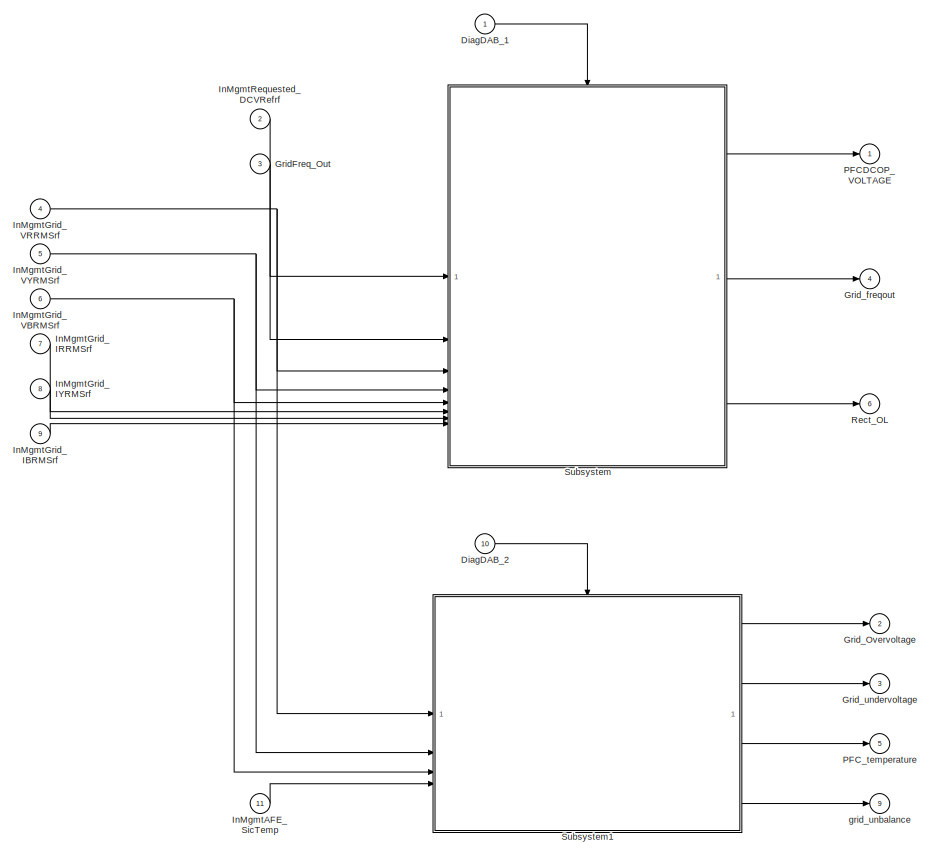
[diagram: root canvas - part 1/2, full width, top band]
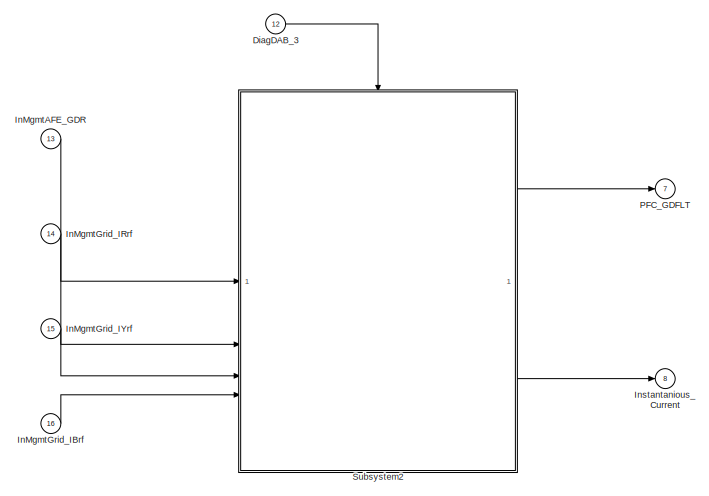
[diagram: root canvas - part 2/2, full width, bottom band]
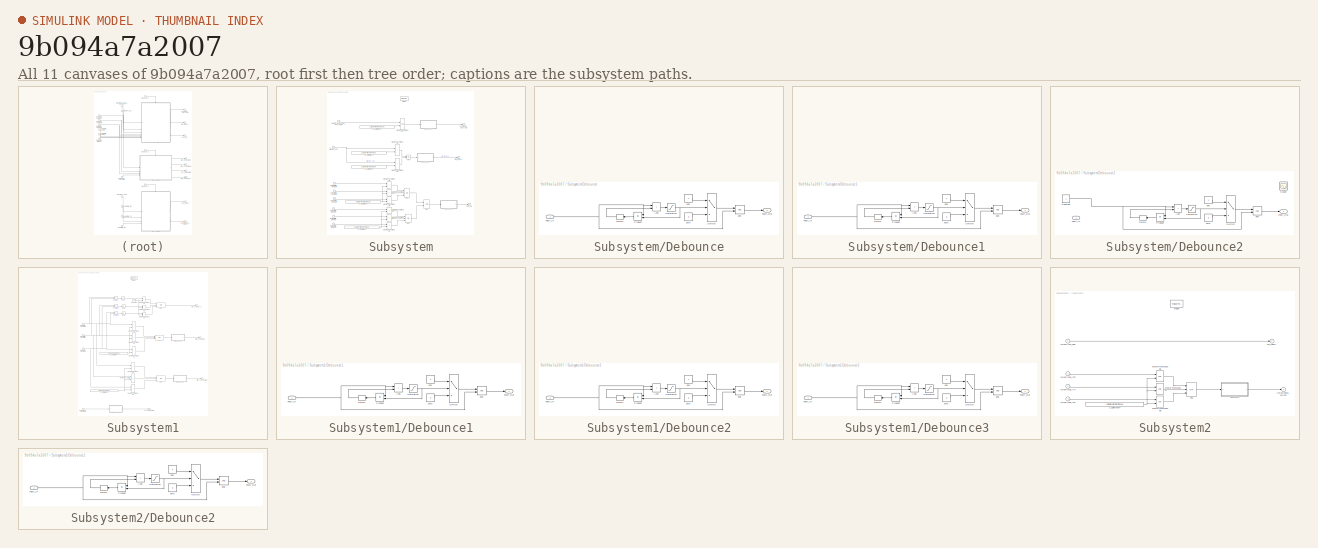
[diagram: thumbnail index - all 11 canvases of the model, root first then tree order]
MODEL slx_9b094a7a2007
KIND model
BLOCK [Inport] DiagDAB_1
  AttributesFormatString = %<SampleTime>
  Description = Inverter HVDC voltage
  OutMax = 1000
  OutMin = 0
  OutputFunctionCall = on
  PortDimensions = 1
  SampleTime = 0.001
  SamplingMode = Sample based
  SignalType = real
BLOCK [Inport] DiagDAB_2
  AttributesFormatString = %<SampleTime>
  Description = Inverter HVDC voltage
  OutMax = 1000
  OutMin = 0
  OutputFunctionCall = on
  Port = 10
  PortDimensions = 1
  SampleTime = 0.010
  SamplingMode = Sample based
  SignalType = real
BLOCK [Inport] DiagDAB_3
  AttributesFormatString = %<SampleTime>
  Description = Inverter HVDC voltage
  OutMax = 1000
  OutMin = 0
  OutputFunctionCall = on
  Port = 12
  PortDimensions = 1
  SampleTime = 0.025
  SamplingMode = Sample based
  SignalType = real
BLOCK [Inport] GridFreq_Out
  OutDataTypeStr = uint16
  Port = 3
BLOCK [Outport] Grid_Overvoltage
  OutDataTypeStr = boolean
  Port = 2
  VectorParamsAs1DForOutWhenUnconnected = off
BLOCK [Outport] Grid_freqout 
  OutDataTypeStr = boolean
  Port = 4
  VectorParamsAs1DForOutWhenUnconnected = off
BLOCK [Outport] Grid_undervoltage
  OutDataTypeStr = boolean
  Port = 3
  VectorParamsAs1DForOutWhenUnconnected = off
BLOCK [Inport] InMgmtAFE_GDR
  OutDataTypeStr = boolean
  Port = 13
BLOCK [Inport] InMgmtAFE_SicTemp
  OutDataTypeStr = boolean
  Port = 11
BLOCK [Inport] InMgmtGrid_IBRMSrf
  OutDataTypeStr = uint16
  Port = 9
BLOCK [Inport] InMgmtGrid_IBrf
  OutDataTypeStr = uint16
  Port = 16
BLOCK [Inport] InMgmtGrid_IRRMSrf
  OutDataTypeStr = uint16
  Port = 7
BLOCK [Inport] InMgmtGrid_IRrf
  OutDataTypeStr = uint16
  Port = 14
BLOCK [Inport] InMgmtGrid_IYRMSrf
  OutDataTypeStr = uint16
  Port = 8
BLOCK [Inport] InMgmtGrid_IYrf
  OutDataTypeStr = uint16
  Port = 15
BLOCK [Inport] InMgmtGrid_VBRMSrf
  OutDataTypeStr = uint16
  Port = 6
BLOCK [Inport] InMgmtGrid_VRRMSrf
  OutDataTypeStr = uint16
  Port = 4
BLOCK [Inport] InMgmtGrid_VYRMSrf
  OutDataTypeStr = uint16
  Port = 5
BLOCK [Inport] InMgmtRequested_DCVRefrf
  OutDataTypeStr = uint16
  Port = 2
BLOCK [Outport] Instantanious_Current
  OutDataTypeStr = boolean
  Port = 8
  VectorParamsAs1DForOutWhenUnconnected = off
BLOCK [Outport] PFCDCOP_VOLTAGE
  OutDataTypeStr = boolean
  VectorParamsAs1DForOutWhenUnconnected = off
BLOCK [Outport] PFC_GDFLT
  OutDataTypeStr = boolean
  Port = 7
  VectorParamsAs1DForOutWhenUnconnected = off
BLOCK [Outport] PFC_temperature
  OutDataTypeStr = boolean
  Port = 5
  VectorParamsAs1DForOutWhenUnconnected = off
BLOCK [Outport] Rect_OL
  OutDataTypeStr = boolean
  Port = 6
  VectorParamsAs1DForOutWhenUnconnected = off
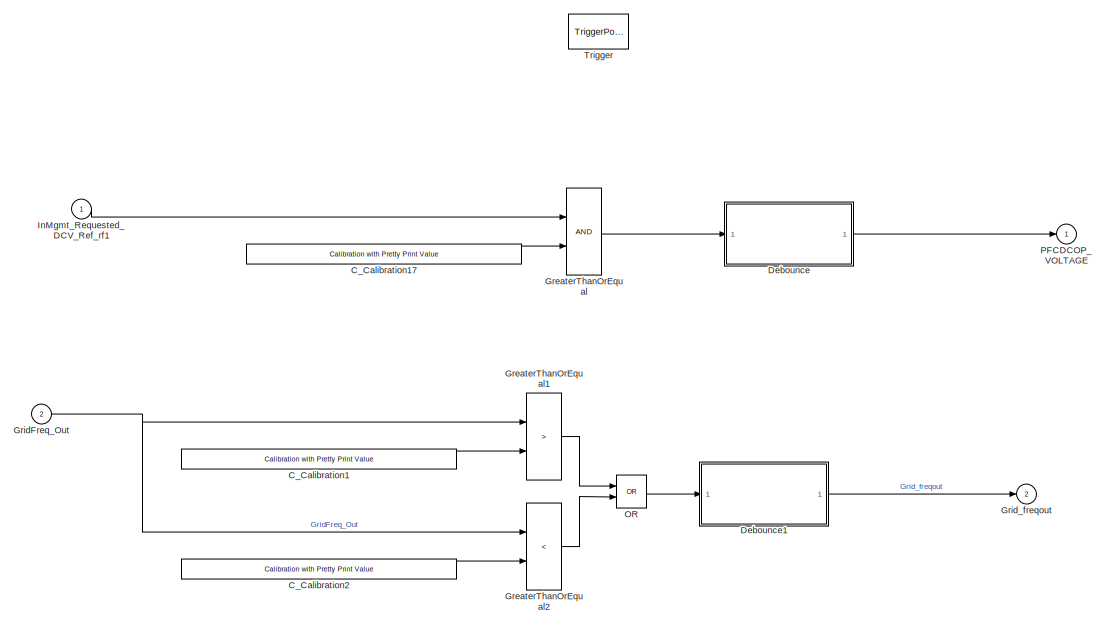
[diagram: Subsystem - part 1/2, full width, top band]
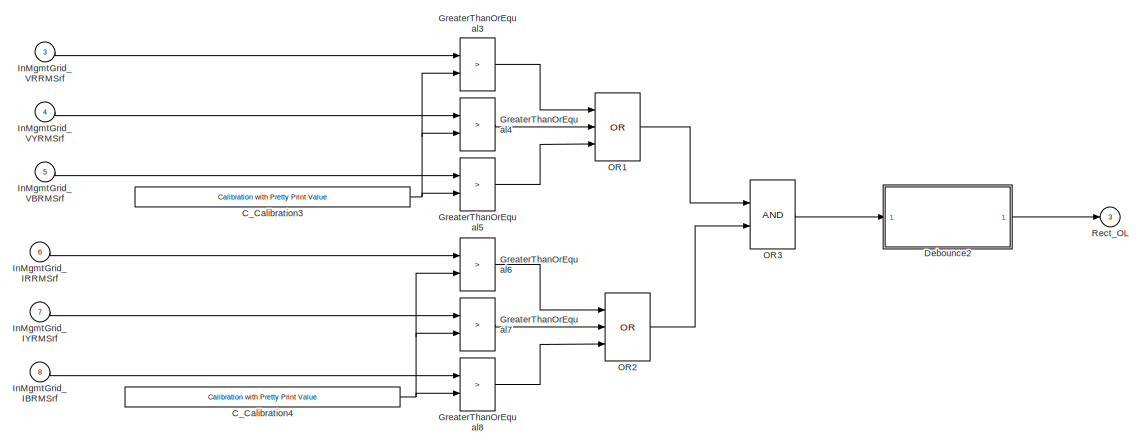
[diagram: Subsystem - part 2/2, full width, bottom band]
BLOCK [SubSystem] Subsystem
BLOCK [Reference] Subsystem/C_Calibration1  REF=common_lib/IO/Calibration with Pretty
Print Value
  SourceBlock = common_lib/IO/Calibration with Pretty\nPrint Value
  SourceProductName = Common Library Blocks
  SourceType = Calibratible Input
BLOCK [Reference] Subsystem/C_Calibration17  REF=common_lib/IO/Calibration with Pretty
Print Value
  SourceBlock = common_lib/IO/Calibration with Pretty\nPrint Value
  SourceProductName = Common Library Blocks
  SourceType = Calibratible Input
BLOCK [Reference] Subsystem/C_Calibration2  REF=common_lib/IO/Calibration with Pretty
Print Value
  SourceBlock = common_lib/IO/Calibration with Pretty\nPrint Value
  SourceProductName = Common Library Blocks
  SourceType = Calibratible Input
BLOCK [Reference] Subsystem/C_Calibration3  REF=common_lib/IO/Calibration with Pretty
Print Value
  SourceBlock = common_lib/IO/Calibration with Pretty\nPrint Value
  SourceProductName = Common Library Blocks
  SourceType = Calibratible Input
BLOCK [Reference] Subsystem/C_Calibration4  REF=common_lib/IO/Calibration with Pretty
Print Value
  SourceBlock = common_lib/IO/Calibration with Pretty\nPrint Value
  SourceProductName = Common Library Blocks
  SourceType = Calibratible Input
BLOCK [SubSystem] Subsystem/Debounce
BLOCK [Sum] Subsystem/Debounce/Add
  IconShape = rectangular
  NameLocation = top
BLOCK [Delay] Subsystem/Debounce/Delay1
  DelayLength = 1
  InputPortMap = u0
BLOCK [Inport] Subsystem/Debounce/Fault_In
BLOCK [Outport] Subsystem/Debounce/Fault_Out
  VectorParamsAs1DForOutWhenUnconnected = off
BLOCK [Product] Subsystem/Debounce/Product
BLOCK [Saturate] Subsystem/Debounce/Saturation
  LowerLimit = 0
  UpperLimit = (1*20)+1
BLOCK [Switch] Subsystem/Debounce/Switch
  InputSameDT = off
  NameLocation = top
  SaturateOnIntegerOverflow = off
  Threshold = (1*20)
BLOCK [Logic] Subsystem/Debounce/and
  AllPortsSameDT = off
  OutDataTypeStr = boolean
BLOCK [Constant] Subsystem/Debounce/one
BLOCK [Constant] Subsystem/Debounce/zero
  Value = 0
BLOCK [SubSystem] Subsystem/Debounce1
BLOCK [Sum] Subsystem/Debounce1/Add
  IconShape = rectangular
  NameLocation = top
BLOCK [Delay] Subsystem/Debounce1/Delay1
  DelayLength = 1
  InputPortMap = u0
BLOCK [Inport] Subsystem/Debounce1/Fault_In
BLOCK [Outport] Subsystem/Debounce1/Fault_Out
  VectorParamsAs1DForOutWhenUnconnected = off
BLOCK [Product] Subsystem/Debounce1/Product
BLOCK [Saturate] Subsystem/Debounce1/Saturation
  LowerLimit = 0
  UpperLimit = (1*20)+1
BLOCK [Switch] Subsystem/Debounce1/Switch
  InputSameDT = off
  NameLocation = top
  SaturateOnIntegerOverflow = off
  Threshold = (1*20)
BLOCK [Logic] Subsystem/Debounce1/and
  AllPortsSameDT = off
  OutDataTypeStr = boolean
BLOCK [Constant] Subsystem/Debounce1/one
BLOCK [Constant] Subsystem/Debounce1/zero
  Value = 0
BLOCK [SubSystem] Subsystem/Debounce2
BLOCK [Sum] Subsystem/Debounce2/Add
  IconShape = rectangular
  NameLocation = top
BLOCK [Constant] Subsystem/Debounce2/Constant
BLOCK [Delay] Subsystem/Debounce2/Delay1
  DelayLength = 1
  InputPortMap = u0
BLOCK [Inport] Subsystem/Debounce2/Fault_In
BLOCK [Outport] Subsystem/Debounce2/Fault_Out
  VectorParamsAs1DForOutWhenUnconnected = off
BLOCK [Product] Subsystem/Debounce2/Product
BLOCK [Saturate] Subsystem/Debounce2/Saturation
  LowerLimit = 0
  UpperLimit = (1*20)+1
BLOCK [Scope] Subsystem/Debounce2/Scope
  Floating = off
  NumInputPorts = 1
  ScopeSpecificationString = Simulink.scopes.TimeScopeBlockCfg('CurrentConfiguration', extmgr.ConfigurationSet(extmgr.Configuration('Core','General UI',true),extmgr.Configuration('Core','Source UI',true),extmgr.Configuration('Sources','WiredSimulink',true,'DataLoggingVariableName','ScopeData2'),extmgr.Configuration('Visuals','Time Domain',true),extmgr.Configuration('Tools','Plot Navigation',true),extmgr.Configuration('Tools',...<+40ch>
BLOCK [Switch] Subsystem/Debounce2/Switch
  InputSameDT = off
  NameLocation = top
  SaturateOnIntegerOverflow = off
  Threshold = (1*20)
BLOCK [Logic] Subsystem/Debounce2/and
  AllPortsSameDT = off
  OutDataTypeStr = boolean
BLOCK [Constant] Subsystem/Debounce2/one
BLOCK [Constant] Subsystem/Debounce2/zero
  Value = 0
BLOCK [RelationalOperator] Subsystem/GreaterThanOrEqual
  InputSameDT = off
  OutDataTypeStr = boolean
  RndMeth = Simplest
BLOCK [RelationalOperator] Subsystem/GreaterThanOrEqual1
  InputSameDT = off
  Operator = >
  OutDataTypeStr = boolean
  RndMeth = Simplest
BLOCK [RelationalOperator] Subsystem/GreaterThanOrEqual2
  InputSameDT = off
  Operator = <
  OutDataTypeStr = boolean
  RndMeth = Simplest
BLOCK [RelationalOperator] Subsystem/GreaterThanOrEqual3
  InputSameDT = off
  Operator = >
  OutDataTypeStr = boolean
  RndMeth = Simplest
BLOCK [RelationalOperator] Subsystem/GreaterThanOrEqual4
  InputSameDT = off
  Operator = >
  OutDataTypeStr = boolean
  RndMeth = Simplest
BLOCK [RelationalOperator] Subsystem/GreaterThanOrEqual5
  InputSameDT = off
  Operator = >
  OutDataTypeStr = boolean
  RndMeth = Simplest
BLOCK [RelationalOperator] Subsystem/GreaterThanOrEqual6
  InputSameDT = off
  Operator = >
  OutDataTypeStr = boolean
  RndMeth = Simplest
BLOCK [RelationalOperator] Subsystem/GreaterThanOrEqual7
  InputSameDT = off
  Operator = >
  OutDataTypeStr = boolean
  RndMeth = Simplest
BLOCK [RelationalOperator] Subsystem/GreaterThanOrEqual8
  InputSameDT = off
  Operator = >
  OutDataTypeStr = boolean
  RndMeth = Simplest
BLOCK [Inport] Subsystem/GridFreq_Out
  Port = 2
BLOCK [Outport] Subsystem/Grid_freqout 
  Port = 2
  VectorParamsAs1DForOutWhenUnconnected = off
BLOCK [Inport] Subsystem/InMgmtGrid_IBRMSrf
  Port = 8
BLOCK [Inport] Subsystem/InMgmtGrid_IRRMSrf
  Port = 6
BLOCK [Inport] Subsystem/InMgmtGrid_IYRMSrf
  Port = 7
BLOCK [Inport] Subsystem/InMgmtGrid_VBRMSrf
  Port = 5
BLOCK [Inport] Subsystem/InMgmtGrid_VRRMSrf
  Port = 3
BLOCK [Inport] Subsystem/InMgmtGrid_VYRMSrf
  Port = 4
BLOCK [Inport] Subsystem/InMgmt_Requested_DCV_Ref_rf1
BLOCK [Logic] Subsystem/OR
  AllPortsSameDT = off
  Operator = OR
  OutDataTypeStr = boolean
BLOCK [Logic] Subsystem/OR1
  AllPortsSameDT = off
  Inputs = 3
  Operator = OR
  OutDataTypeStr = boolean
BLOCK [Logic] Subsystem/OR2
  AllPortsSameDT = off
  Inputs = 3
  Operator = OR
  OutDataTypeStr = boolean
BLOCK [Logic] Subsystem/OR3
  AllPortsSameDT = off
  OutDataTypeStr = boolean
BLOCK [Outport] Subsystem/PFCDCOP_VOLTAGE
  VectorParamsAs1DForOutWhenUnconnected = off
BLOCK [Outport] Subsystem/Rect_OL
  Port = 3
  VectorParamsAs1DForOutWhenUnconnected = off
BLOCK [TriggerPort] Subsystem/Trigger
  PortDimensions = 1
  SampleTime = -1
  StatesWhenEnabling = held
  TriggerType = function-call
  VariantControl = (inherit)
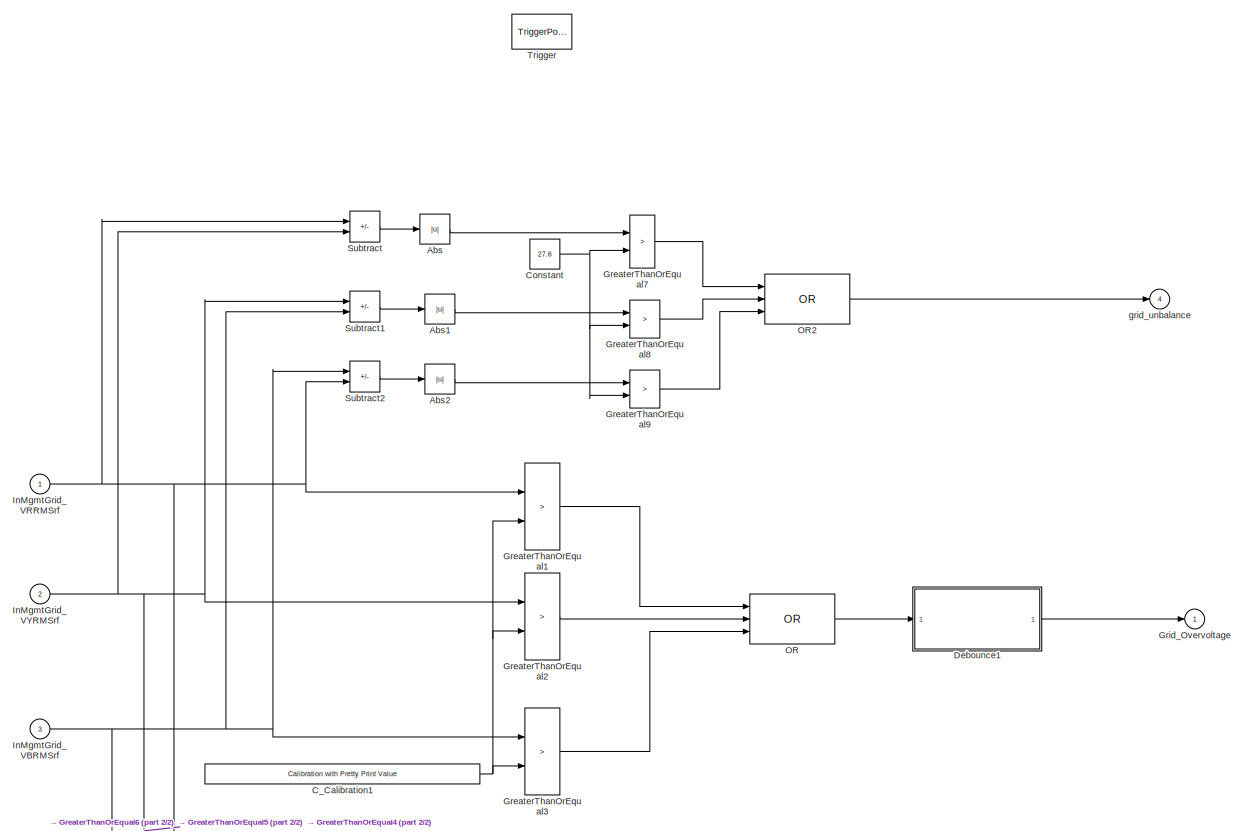
[diagram: Subsystem1 - part 1/2, full width, top band]
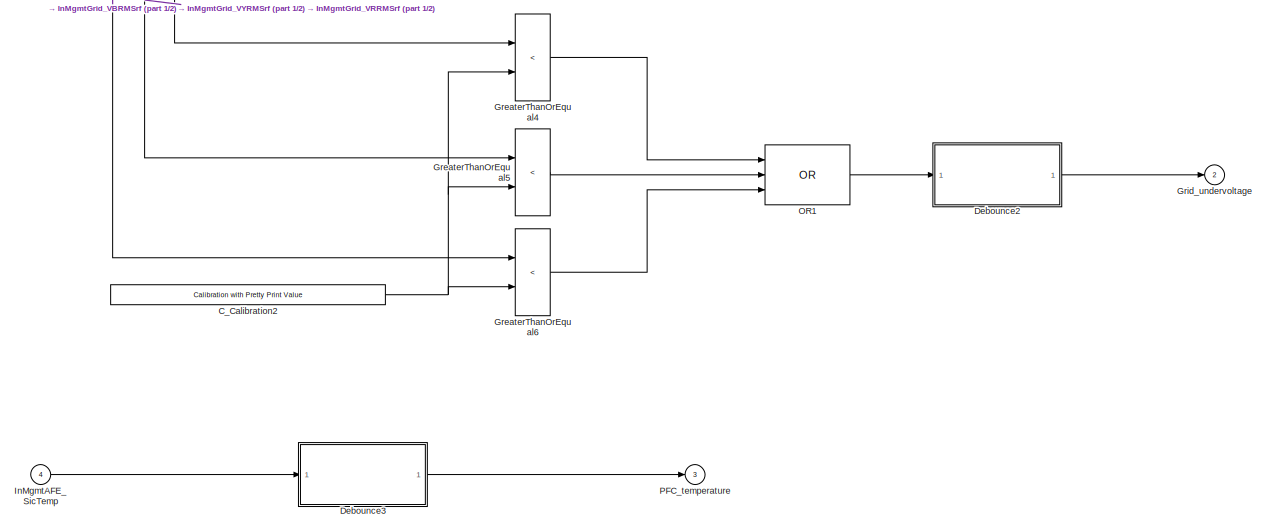
[diagram: Subsystem1 - part 2/2, full width, bottom band]
BLOCK [SubSystem] Subsystem1
BLOCK [Abs] Subsystem1/Abs
  SaturateOnIntegerOverflow = off
BLOCK [Abs] Subsystem1/Abs1
  SaturateOnIntegerOverflow = off
BLOCK [Abs] Subsystem1/Abs2
  SaturateOnIntegerOverflow = off
BLOCK [Reference] Subsystem1/C_Calibration1  REF=common_lib/IO/Calibration with Pretty
Print Value
  SourceBlock = common_lib/IO/Calibration with Pretty\nPrint Value
  SourceProductName = Common Library Blocks
  SourceType = Calibratible Input
BLOCK [Reference] Subsystem1/C_Calibration2  REF=common_lib/IO/Calibration with Pretty
Print Value
  SourceBlock = common_lib/IO/Calibration with Pretty\nPrint Value
  SourceProductName = Common Library Blocks
  SourceType = Calibratible Input
BLOCK [Constant] Subsystem1/Constant
  Value = 27.6
BLOCK [SubSystem] Subsystem1/Debounce1
BLOCK [Sum] Subsystem1/Debounce1/Add
  IconShape = rectangular
  NameLocation = top
BLOCK [Delay] Subsystem1/Debounce1/Delay1
  DelayLength = 1
  InputPortMap = u0
BLOCK [Inport] Subsystem1/Debounce1/Fault_In
BLOCK [Outport] Subsystem1/Debounce1/Fault_Out
  VectorParamsAs1DForOutWhenUnconnected = off
BLOCK [Product] Subsystem1/Debounce1/Product
BLOCK [Saturate] Subsystem1/Debounce1/Saturation
  LowerLimit = 0
  UpperLimit = (0.1*1000)+1
BLOCK [Switch] Subsystem1/Debounce1/Switch
  InputSameDT = off
  NameLocation = top
  SaturateOnIntegerOverflow = off
  Threshold = (0.1*1000)
BLOCK [Logic] Subsystem1/Debounce1/and
  AllPortsSameDT = off
  OutDataTypeStr = boolean
BLOCK [Constant] Subsystem1/Debounce1/one
BLOCK [Constant] Subsystem1/Debounce1/zero
  Value = 0
BLOCK [SubSystem] Subsystem1/Debounce2
BLOCK [Sum] Subsystem1/Debounce2/Add
  IconShape = rectangular
  NameLocation = top
BLOCK [Delay] Subsystem1/Debounce2/Delay1
  DelayLength = 1
  InputPortMap = u0
BLOCK [Inport] Subsystem1/Debounce2/Fault_In
BLOCK [Outport] Subsystem1/Debounce2/Fault_Out
  VectorParamsAs1DForOutWhenUnconnected = off
BLOCK [Product] Subsystem1/Debounce2/Product
BLOCK [Saturate] Subsystem1/Debounce2/Saturation
  LowerLimit = 0
  UpperLimit = (0.1*1000)+1
BLOCK [Switch] Subsystem1/Debounce2/Switch
  InputSameDT = off
  NameLocation = top
  SaturateOnIntegerOverflow = off
  Threshold = (0.1*1000)
BLOCK [Logic] Subsystem1/Debounce2/and
  AllPortsSameDT = off
  OutDataTypeStr = boolean
BLOCK [Constant] Subsystem1/Debounce2/one
BLOCK [Constant] Subsystem1/Debounce2/zero
  Value = 0
BLOCK [SubSystem] Subsystem1/Debounce3
BLOCK [Sum] Subsystem1/Debounce3/Add
  IconShape = rectangular
  NameLocation = top
BLOCK [Delay] Subsystem1/Debounce3/Delay1
  DelayLength = 1
  InputPortMap = u0
BLOCK [Inport] Subsystem1/Debounce3/Fault_In
BLOCK [Outport] Subsystem1/Debounce3/Fault_Out
  VectorParamsAs1DForOutWhenUnconnected = off
BLOCK [Product] Subsystem1/Debounce3/Product
BLOCK [Saturate] Subsystem1/Debounce3/Saturation
  LowerLimit = 0
  UpperLimit = (0.1*1000)+1
BLOCK [Switch] Subsystem1/Debounce3/Switch
  InputSameDT = off
  NameLocation = top
  SaturateOnIntegerOverflow = off
  Threshold = (0.1*1000)
BLOCK [Logic] Subsystem1/Debounce3/and
  AllPortsSameDT = off
  OutDataTypeStr = boolean
BLOCK [Constant] Subsystem1/Debounce3/one
BLOCK [Constant] Subsystem1/Debounce3/zero
  Value = 0
BLOCK [RelationalOperator] Subsystem1/GreaterThanOrEqual1
  InputSameDT = off
  Operator = >
  OutDataTypeStr = boolean
  RndMeth = Simplest
BLOCK [RelationalOperator] Subsystem1/GreaterThanOrEqual2
  InputSameDT = off
  Operator = >
  OutDataTypeStr = boolean
  RndMeth = Simplest
BLOCK [RelationalOperator] Subsystem1/GreaterThanOrEqual3
  InputSameDT = off
  Operator = >
  OutDataTypeStr = boolean
  RndMeth = Simplest
BLOCK [RelationalOperator] Subsystem1/GreaterThanOrEqual4
  InputSameDT = off
  Operator = <
  OutDataTypeStr = boolean
  RndMeth = Simplest
BLOCK [RelationalOperator] Subsystem1/GreaterThanOrEqual5
  InputSameDT = off
  Operator = <
  OutDataTypeStr = boolean
  RndMeth = Simplest
BLOCK [RelationalOperator] Subsystem1/GreaterThanOrEqual6
  InputSameDT = off
  Operator = <
  OutDataTypeStr = boolean
  RndMeth = Simplest
BLOCK [RelationalOperator] Subsystem1/GreaterThanOrEqual7
  InputSameDT = off
  Operator = >
  OutDataTypeStr = boolean
  RndMeth = Simplest
BLOCK [RelationalOperator] Subsystem1/GreaterThanOrEqual8
  InputSameDT = off
  Operator = >
  OutDataTypeStr = boolean
  RndMeth = Simplest
BLOCK [RelationalOperator] Subsystem1/GreaterThanOrEqual9
  InputSameDT = off
  Operator = >
  OutDataTypeStr = boolean
  RndMeth = Simplest
BLOCK [Outport] Subsystem1/Grid_Overvoltage
  VectorParamsAs1DForOutWhenUnconnected = off
BLOCK [Outport] Subsystem1/Grid_undervoltage
  Port = 2
  VectorParamsAs1DForOutWhenUnconnected = off
BLOCK [Inport] Subsystem1/InMgmtAFE_SicTemp
  Port = 4
BLOCK [Inport] Subsystem1/InMgmtGrid_VBRMSrf
  Port = 3
BLOCK [Inport] Subsystem1/InMgmtGrid_VRRMSrf
BLOCK [Inport] Subsystem1/InMgmtGrid_VYRMSrf
  Port = 2
BLOCK [Logic] Subsystem1/OR
  AllPortsSameDT = off
  Inputs = 3
  Operator = OR
  OutDataTypeStr = boolean
BLOCK [Logic] Subsystem1/OR1
  AllPortsSameDT = off
  Inputs = 3
  Operator = OR
  OutDataTypeStr = boolean
BLOCK [Logic] Subsystem1/OR2
  AllPortsSameDT = off
  Inputs = 3
  Operator = OR
  OutDataTypeStr = boolean
BLOCK [Outport] Subsystem1/PFC_temperature
  Port = 3
  VectorParamsAs1DForOutWhenUnconnected = off
BLOCK [Sum] Subsystem1/Subtract
  IconShape = rectangular
  Inputs = +-
BLOCK [Sum] Subsystem1/Subtract1
  IconShape = rectangular
  Inputs = +-
BLOCK [Sum] Subsystem1/Subtract2
  IconShape = rectangular
  Inputs = +-
BLOCK [TriggerPort] Subsystem1/Trigger
  PortDimensions = 1
  SampleTime = -1
  StatesWhenEnabling = held
  TriggerType = function-call
  VariantControl = (inherit)
BLOCK [Outport] Subsystem1/grid_unbalance
  Port = 4
  VectorParamsAs1DForOutWhenUnconnected = off
BLOCK [SubSystem] Subsystem2
BLOCK [Reference] Subsystem2/C_Calibration4  REF=common_lib/IO/Calibration with Pretty
Print Value
  SourceBlock = common_lib/IO/Calibration with Pretty\nPrint Value
  SourceProductName = Common Library Blocks
  SourceType = Calibratible Input
BLOCK [SubSystem] Subsystem2/Debounce2
BLOCK [Sum] Subsystem2/Debounce2/Add
  IconShape = rectangular
  NameLocation = top
BLOCK [Delay] Subsystem2/Debounce2/Delay1
  DelayLength = 1
  InputPortMap = u0
BLOCK [Inport] Subsystem2/Debounce2/Fault_In
BLOCK [Outport] Subsystem2/Debounce2/Fault_Out
  VectorParamsAs1DForOutWhenUnconnected = off
BLOCK [Product] Subsystem2/Debounce2/Product
BLOCK [Saturate] Subsystem2/Debounce2/Saturation
  LowerLimit = 0
  UpperLimit = (40*0.24)+1
BLOCK [Switch] Subsystem2/Debounce2/Switch
  InputSameDT = off
  NameLocation = top
  SaturateOnIntegerOverflow = off
  Threshold = (40*0.24)
BLOCK [Logic] Subsystem2/Debounce2/and
  AllPortsSameDT = off
  OutDataTypeStr = boolean
BLOCK [Constant] Subsystem2/Debounce2/one
BLOCK [Constant] Subsystem2/Debounce2/zero
  Value = 0
BLOCK [RelationalOperator] Subsystem2/GreaterThanOrEqual6
  InputSameDT = off
  OutDataTypeStr = boolean
  RndMeth = Simplest
BLOCK [RelationalOperator] Subsystem2/GreaterThanOrEqual7
  InputSameDT = off
  OutDataTypeStr = boolean
  RndMeth = Simplest
BLOCK [RelationalOperator] Subsystem2/GreaterThanOrEqual8
  InputSameDT = off
  OutDataTypeStr = boolean
  RndMeth = Simplest
BLOCK [Inport] Subsystem2/InMgmtAFE_GDR
BLOCK [Inport] Subsystem2/InMgmtGrid_IBrf
  Port = 4
BLOCK [Inport] Subsystem2/InMgmtGrid_IRrf
  Port = 2
BLOCK [Inport] Subsystem2/InMgmtGrid_IYrf
  Port = 3
BLOCK [Outport] Subsystem2/Instantanious_Current
  Port = 2
  VectorParamsAs1DForOutWhenUnconnected = off
BLOCK [Logic] Subsystem2/OR2
  AllPortsSameDT = off
  Inputs = 3
  Operator = OR
  OutDataTypeStr = boolean
BLOCK [Outport] Subsystem2/PFC_GDFLT
  VectorParamsAs1DForOutWhenUnconnected = off
BLOCK [TriggerPort] Subsystem2/Trigger
  PortDimensions = 1
  SampleTime = -1
  StatesWhenEnabling = held
  TriggerType = function-call
  VariantControl = (inherit)
BLOCK [Outport] grid_unbalance
  OutDataTypeStr = boolean
  Port = 9
  VectorParamsAs1DForOutWhenUnconnected = off
LINE DiagDAB_1:1 -> Subsystem:trigger
LINE DiagDAB_2:1 -> Subsystem1:trigger
LINE DiagDAB_3:1 -> Subsystem2:trigger
LINE GridFreq_Out:1 -> Subsystem:2
LINE InMgmtAFE_GDR:1 -> Subsystem2:1
LINE InMgmtAFE_SicTemp:1 -> Subsystem1:4
LINE InMgmtGrid_IBRMSrf:1 -> Subsystem:8
LINE InMgmtGrid_IBrf:1 -> Subsystem2:4
LINE InMgmtGrid_IRRMSrf:1 -> Subsystem:6
LINE InMgmtGrid_IRrf:1 -> Subsystem2:2
LINE InMgmtGrid_IYRMSrf:1 -> Subsystem:7
LINE InMgmtGrid_IYrf:1 -> Subsystem2:3
NET InMgmtGrid_VBRMSrf:1 -> Subsystem1:3, Subsystem:5
NET InMgmtGrid_VRRMSrf:1 -> Subsystem1:1, Subsystem:3
NET InMgmtGrid_VYRMSrf:1 -> Subsystem1:2, Subsystem:4
LINE InMgmtRequested_DCVRefrf:1 -> Subsystem:1
LINE Subsystem/C_Calibration17:1 -> Subsystem/GreaterThanOrEqual:2
LINE Subsystem/C_Calibration1:1 -> Subsystem/GreaterThanOrEqual1:2
LINE Subsystem/C_Calibration2:1 -> Subsystem/GreaterThanOrEqual2:2
NET Subsystem/C_Calibration3:1 -> Subsystem/GreaterThanOrEqual3:2, Subsystem/GreaterThanOrEqual4:2, Subsystem/GreaterThanOrEqual5:2
NET Subsystem/C_Calibration4:1 -> Subsystem/GreaterThanOrEqual6:2, Subsystem/GreaterThanOrEqual7:2, Subsystem/GreaterThanOrEqual8:2
LINE Subsystem/Debounce/Add:1 -> Subsystem/Debounce/Saturation:1
LINE Subsystem/Debounce/Delay1:1 -> Subsystem/Debounce/Add:2
NET Subsystem/Debounce/Fault_In:1 -> Subsystem/Debounce/Add:1, Subsystem/Debounce/Product:1, Subsystem/Debounce/and:2
LINE Subsystem/Debounce/Product:1 -> Subsystem/Debounce/Delay1:1
NET Subsystem/Debounce/Saturation:1 -> Subsystem/Debounce/Product:2, Subsystem/Debounce/Switch:2
LINE Subsystem/Debounce/Switch:1 -> Subsystem/Debounce/and:1
LINE Subsystem/Debounce/and:1 -> Subsystem/Debounce/Fault_Out:1
LINE Subsystem/Debounce/one:1 -> Subsystem/Debounce/Switch:1
LINE Subsystem/Debounce/zero:1 -> Subsystem/Debounce/Switch:3
LINE Subsystem/Debounce1/Add:1 -> Subsystem/Debounce1/Saturation:1
LINE Subsystem/Debounce1/Delay1:1 -> Subsystem/Debounce1/Add:2
NET Subsystem/Debounce1/Fault_In:1 -> Subsystem/Debounce1/Add:1, Subsystem/Debounce1/Product:1, Subsystem/Debounce1/and:2
LINE Subsystem/Debounce1/Product:1 -> Subsystem/Debounce1/Delay1:1
NET Subsystem/Debounce1/Saturation:1 -> Subsystem/Debounce1/Product:2, Subsystem/Debounce1/Switch:2
LINE Subsystem/Debounce1/Switch:1 -> Subsystem/Debounce1/and:1
LINE Subsystem/Debounce1/and:1 -> Subsystem/Debounce1/Fault_Out:1
LINE Subsystem/Debounce1/one:1 -> Subsystem/Debounce1/Switch:1
LINE Subsystem/Debounce1/zero:1 -> Subsystem/Debounce1/Switch:3
LINE Subsystem/Debounce1:1 -> Subsystem/Grid_freqout :1
LINE Subsystem/Debounce2/Add:1 -> Subsystem/Debounce2/Saturation:1
NET Subsystem/Debounce2/Constant:1 -> Subsystem/Debounce2/Add:1, Subsystem/Debounce2/Product:1, Subsystem/Debounce2/and:2
LINE Subsystem/Debounce2/Delay1:1 -> Subsystem/Debounce2/Add:2
LINE Subsystem/Debounce2/Product:1 -> Subsystem/Debounce2/Delay1:1
NET Subsystem/Debounce2/Saturation:1 -> Subsystem/Debounce2/Product:2, Subsystem/Debounce2/Switch:2
LINE Subsystem/Debounce2/Switch:1 -> Subsystem/Debounce2/and:1
LINE Subsystem/Debounce2/and:1 -> Subsystem/Debounce2/Fault_Out:1
LINE Subsystem/Debounce2/one:1 -> Subsystem/Debounce2/Switch:1
LINE Subsystem/Debounce2/zero:1 -> Subsystem/Debounce2/Switch:3
LINE Subsystem/Debounce2:1 -> Subsystem/Rect_OL:1
LINE Subsystem/Debounce:1 -> Subsystem/PFCDCOP_VOLTAGE:1
LINE Subsystem/GreaterThanOrEqual1:1 -> Subsystem/OR:1
LINE Subsystem/GreaterThanOrEqual2:1 -> Subsystem/OR:2
LINE Subsystem/GreaterThanOrEqual3:1 -> Subsystem/OR1:1
LINE Subsystem/GreaterThanOrEqual4:1 -> Subsystem/OR1:2
LINE Subsystem/GreaterThanOrEqual5:1 -> Subsystem/OR1:3
LINE Subsystem/GreaterThanOrEqual6:1 -> Subsystem/OR2:1
LINE Subsystem/GreaterThanOrEqual7:1 -> Subsystem/OR2:2
LINE Subsystem/GreaterThanOrEqual8:1 -> Subsystem/OR2:3
LINE Subsystem/GreaterThanOrEqual:1 -> Subsystem/Debounce:1
NET Subsystem/GridFreq_Out:1 -> Subsystem/GreaterThanOrEqual1:1, Subsystem/GreaterThanOrEqual2:1
LINE Subsystem/InMgmtGrid_IBRMSrf:1 -> Subsystem/GreaterThanOrEqual8:1
LINE Subsystem/InMgmtGrid_IRRMSrf:1 -> Subsystem/GreaterThanOrEqual6:1
LINE Subsystem/InMgmtGrid_IYRMSrf:1 -> Subsystem/GreaterThanOrEqual7:1
LINE Subsystem/InMgmtGrid_VBRMSrf:1 -> Subsystem/GreaterThanOrEqual5:1
LINE Subsystem/InMgmtGrid_VRRMSrf:1 -> Subsystem/GreaterThanOrEqual3:1
LINE Subsystem/InMgmtGrid_VYRMSrf:1 -> Subsystem/GreaterThanOrEqual4:1
LINE Subsystem/InMgmt_Requested_DCV_Ref_rf1:1 -> Subsystem/GreaterThanOrEqual:1
LINE Subsystem/OR1:1 -> Subsystem/OR3:1
LINE Subsystem/OR2:1 -> Subsystem/OR3:2
LINE Subsystem/OR3:1 -> Subsystem/Debounce2:1
LINE Subsystem/OR:1 -> Subsystem/Debounce1:1
LINE Subsystem1/Abs1:1 -> Subsystem1/GreaterThanOrEqual8:1
LINE Subsystem1/Abs2:1 -> Subsystem1/GreaterThanOrEqual9:1
LINE Subsystem1/Abs:1 -> Subsystem1/GreaterThanOrEqual7:1
NET Subsystem1/C_Calibration1:1 -> Subsystem1/GreaterThanOrEqual1:2, Subsystem1/GreaterThanOrEqual2:2, Subsystem1/GreaterThanOrEqual3:2
NET Subsystem1/C_Calibration2:1 -> Subsystem1/GreaterThanOrEqual4:2, Subsystem1/GreaterThanOrEqual5:2, Subsystem1/GreaterThanOrEqual6:2
NET Subsystem1/Constant:1 -> Subsystem1/GreaterThanOrEqual7:2, Subsystem1/GreaterThanOrEqual8:2, Subsystem1/GreaterThanOrEqual9:2
LINE Subsystem1/Debounce1/Add:1 -> Subsystem1/Debounce1/Saturation:1
LINE Subsystem1/Debounce1/Delay1:1 -> Subsystem1/Debounce1/Add:2
NET Subsystem1/Debounce1/Fault_In:1 -> Subsystem1/Debounce1/Add:1, Subsystem1/Debounce1/Product:1, Subsystem1/Debounce1/and:2
LINE Subsystem1/Debounce1/Product:1 -> Subsystem1/Debounce1/Delay1:1
NET Subsystem1/Debounce1/Saturation:1 -> Subsystem1/Debounce1/Product:2, Subsystem1/Debounce1/Switch:2
LINE Subsystem1/Debounce1/Switch:1 -> Subsystem1/Debounce1/and:1
LINE Subsystem1/Debounce1/and:1 -> Subsystem1/Debounce1/Fault_Out:1
LINE Subsystem1/Debounce1/one:1 -> Subsystem1/Debounce1/Switch:1
LINE Subsystem1/Debounce1/zero:1 -> Subsystem1/Debounce1/Switch:3
LINE Subsystem1/Debounce1:1 -> Subsystem1/Grid_Overvoltage:1
LINE Subsystem1/Debounce2/Add:1 -> Subsystem1/Debounce2/Saturation:1
LINE Subsystem1/Debounce2/Delay1:1 -> Subsystem1/Debounce2/Add:2
NET Subsystem1/Debounce2/Fault_In:1 -> Subsystem1/Debounce2/Add:1, Subsystem1/Debounce2/Product:1, Subsystem1/Debounce2/and:2
LINE Subsystem1/Debounce2/Product:1 -> Subsystem1/Debounce2/Delay1:1
NET Subsystem1/Debounce2/Saturation:1 -> Subsystem1/Debounce2/Product:2, Subsystem1/Debounce2/Switch:2
LINE Subsystem1/Debounce2/Switch:1 -> Subsystem1/Debounce2/and:1
LINE Subsystem1/Debounce2/and:1 -> Subsystem1/Debounce2/Fault_Out:1
LINE Subsystem1/Debounce2/one:1 -> Subsystem1/Debounce2/Switch:1
LINE Subsystem1/Debounce2/zero:1 -> Subsystem1/Debounce2/Switch:3
LINE Subsystem1/Debounce2:1 -> Subsystem1/Grid_undervoltage:1
LINE Subsystem1/Debounce3/Add:1 -> Subsystem1/Debounce3/Saturation:1
LINE Subsystem1/Debounce3/Delay1:1 -> Subsystem1/Debounce3/Add:2
NET Subsystem1/Debounce3/Fault_In:1 -> Subsystem1/Debounce3/Add:1, Subsystem1/Debounce3/Product:1, Subsystem1/Debounce3/and:2
LINE Subsystem1/Debounce3/Product:1 -> Subsystem1/Debounce3/Delay1:1
NET Subsystem1/Debounce3/Saturation:1 -> Subsystem1/Debounce3/Product:2, Subsystem1/Debounce3/Switch:2
LINE Subsystem1/Debounce3/Switch:1 -> Subsystem1/Debounce3/and:1
LINE Subsystem1/Debounce3/and:1 -> Subsystem1/Debounce3/Fault_Out:1
LINE Subsystem1/Debounce3/one:1 -> Subsystem1/Debounce3/Switch:1
LINE Subsystem1/Debounce3/zero:1 -> Subsystem1/Debounce3/Switch:3
LINE Subsystem1/Debounce3:1 -> Subsystem1/PFC_temperature:1
LINE Subsystem1/GreaterThanOrEqual1:1 -> Subsystem1/OR:1
LINE Subsystem1/GreaterThanOrEqual2:1 -> Subsystem1/OR:2
LINE Subsystem1/GreaterThanOrEqual3:1 -> Subsystem1/OR:3
LINE Subsystem1/GreaterThanOrEqual4:1 -> Subsystem1/OR1:1
LINE Subsystem1/GreaterThanOrEqual5:1 -> Subsystem1/OR1:2
LINE Subsystem1/GreaterThanOrEqual6:1 -> Subsystem1/OR1:3
LINE Subsystem1/GreaterThanOrEqual7:1 -> Subsystem1/OR2:1
LINE Subsystem1/GreaterThanOrEqual8:1 -> Subsystem1/OR2:2
LINE Subsystem1/GreaterThanOrEqual9:1 -> Subsystem1/OR2:3
LINE Subsystem1/InMgmtAFE_SicTemp:1 -> Subsystem1/Debounce3:1
NET Subsystem1/InMgmtGrid_VBRMSrf:1 -> Subsystem1/GreaterThanOrEqual3:1, Subsystem1/GreaterThanOrEqual6:1, Subsystem1/Subtract1:2, Subsystem1/Subtract2:1
NET Subsystem1/InMgmtGrid_VRRMSrf:1 -> Subsystem1/GreaterThanOrEqual1:1, Subsystem1/GreaterThanOrEqual4:1, Subsystem1/Subtract2:2, Subsystem1/Subtract:1
NET Subsystem1/InMgmtGrid_VYRMSrf:1 -> Subsystem1/GreaterThanOrEqual2:1, Subsystem1/GreaterThanOrEqual5:1, Subsystem1/Subtract1:1, Subsystem1/Subtract:2
LINE Subsystem1/OR1:1 -> Subsystem1/Debounce2:1
LINE Subsystem1/OR2:1 -> Subsystem1/grid_unbalance:1
LINE Subsystem1/OR:1 -> Subsystem1/Debounce1:1
LINE Subsystem1/Subtract1:1 -> Subsystem1/Abs1:1
LINE Subsystem1/Subtract2:1 -> Subsystem1/Abs2:1
LINE Subsystem1/Subtract:1 -> Subsystem1/Abs:1
LINE Subsystem1:1 -> Grid_Overvoltage:1
LINE Subsystem1:2 -> Grid_undervoltage:1
LINE Subsystem1:3 -> PFC_temperature:1
LINE Subsystem1:4 -> grid_unbalance:1
NET Subsystem2/C_Calibration4:1 -> Subsystem2/GreaterThanOrEqual6:2, Subsystem2/GreaterThanOrEqual7:2, Subsystem2/GreaterThanOrEqual8:2
LINE Subsystem2/Debounce2/Add:1 -> Subsystem2/Debounce2/Saturation:1
LINE Subsystem2/Debounce2/Delay1:1 -> Subsystem2/Debounce2/Add:2
NET Subsystem2/Debounce2/Fault_In:1 -> Subsystem2/Debounce2/Add:1, Subsystem2/Debounce2/Product:1, Subsystem2/Debounce2/and:2
LINE Subsystem2/Debounce2/Product:1 -> Subsystem2/Debounce2/Delay1:1
NET Subsystem2/Debounce2/Saturation:1 -> Subsystem2/Debounce2/Product:2, Subsystem2/Debounce2/Switch:2
LINE Subsystem2/Debounce2/Switch:1 -> Subsystem2/Debounce2/and:1
LINE Subsystem2/Debounce2/and:1 -> Subsystem2/Debounce2/Fault_Out:1
LINE Subsystem2/Debounce2/one:1 -> Subsystem2/Debounce2/Switch:1
LINE Subsystem2/Debounce2/zero:1 -> Subsystem2/Debounce2/Switch:3
LINE Subsystem2/Debounce2:1 -> Subsystem2/Instantanious_Current:1
LINE Subsystem2/GreaterThanOrEqual6:1 -> Subsystem2/OR2:1
LINE Subsystem2/GreaterThanOrEqual7:1 -> Subsystem2/OR2:2
LINE Subsystem2/GreaterThanOrEqual8:1 -> Subsystem2/OR2:3
LINE Subsystem2/InMgmtAFE_GDR:1 -> Subsystem2/PFC_GDFLT:1
LINE Subsystem2/InMgmtGrid_IBrf:1 -> Subsystem2/GreaterThanOrEqual8:1
LINE Subsystem2/InMgmtGrid_IRrf:1 -> Subsystem2/GreaterThanOrEqual6:1
LINE Subsystem2/InMgmtGrid_IYrf:1 -> Subsystem2/GreaterThanOrEqual7:1
LINE Subsystem2/OR2:1 -> Subsystem2/Debounce2:1
LINE Subsystem2:1 -> PFC_GDFLT:1
LINE Subsystem2:2 -> Instantanious_Current:1
LINE Subsystem:1 -> PFCDCOP_VOLTAGE:1
LINE Subsystem:2 -> Grid_freqout :1
LINE Subsystem:3 -> Rect_OL:1
note: NET lines group one-source signal fan-out (src -> all destinations, sorted); 1:1 wires keep LINE
CHART Test Sequence states=15 transitions=15
  STATE_LABEL "InMgmt_GridFreq_cumulative\ncoder.extrinsic('assignin');\ncoder.extrinsic('getSection');\ncoder.extrinsic('set_param');\ncoder.extrinsic('get_param');\ncoder.extrinsic('Simulink.data.dictionary.open');\ncoder.extrinsic('discardChanges');\nSWCDictonary = Simulink.data.dictionary.open('SWC_Diag_AFE.sldd');\nmodelData = getSection(SWCDictonary,'Design Data');\nmodelWorkSpace = get_param('SWC_Diag_AFE','ModelW...<+421ch>"
  STATE_LABEL 'InMgmt_GridFreq_cumulative_Setfault\nGridFreq_Out=uint16(55);'
  STATE_LABEL "InMgmt_GridFreq_cumulative_VerifySetfault\nverify(Grid_freqout==false,'TestCase:InMgmt_GridFreq_cumulative_VerifySetfault_Verify1','Current Output Value:Grid_freqout = %d',single(Grid_freqout));"
  STATE_LABEL 'InMgmt_GridFreq_cumulative_Resetfault\nGridFreq_Out=uint16(50);'
  STATE_LABEL 'InMgmt_GridFreq_cumulative_Setoutput\nGridFreq_Out=uint16(55);'
  STATE_LABEL "InMgmt_GridFreq_cumulative_VerifyOutputs\nGridFreq_Out=uint16(55);\nverify(Grid_freqout==true,'TestCase:InMgmt_GridFreq_cumulative_VerifyOutputs_Verify1','Current Output Value:Grid_freqout = %d',single(Grid_freqout));\nendTest = true;"
  STATE_LABEL '[\nafter(19,msec)\n]'
  STATE_LABEL '[\ntrue\n]'
  STATE_LABEL '[\nafter(3,msec)\n]'
  STATE_LABEL '[\nafter(3,msec)\n]'
  STATE_LABEL 'InMgmt_GridFreq_cumulative_Setfault\nGridFreq_Out=uint16(55);'
  STATE_LABEL "InMgmt_GridFreq_cumulative_VerifySetfault\nverify(Grid_freqout==false,'TestCase:InMgmt_GridFreq_cumulative_VerifySetfault_Verify1','Current Output Value:Grid_freqout = %d',single(Grid_freqout));"
  STATE_LABEL 'InMgmt_GridFreq_cumulative_Resetfault\nGridFreq_Out=uint16(50);'
  STATE_LABEL 'InMgmt_GridFreq_cumulative_Setoutput\nGridFreq_Out=uint16(55);'
  STATE_LABEL "InMgmt_GridFreq_cumulative_VerifyOutputs\nGridFreq_Out=uint16(55);\nverify(Grid_freqout==true,'TestCase:InMgmt_GridFreq_cumulative_VerifyOutputs_Verify1','Current Output Value:Grid_freqout = %d',single(Grid_freqout));\nendTest = true;"
  STATE_LABEL 'InMgmt_GridFreq_reset\nendTest = false;\nInMgmtRequested_DCVRefrf=uint16(0);\nGridFreq_Out=uint16(0);\nInMgmtGrid_VRRMSrf=uint16(0);\nInMgmtGrid_VYRMSrf=uint16(0);\nInMgmtGrid_VBRMSrf=uint16(0);\nInMgmtGrid_IRRMSrf=uint16(0);\nInMgmtGrid_IYRMSrf=uint16(0);\nInMgmtGrid_IBRMSrf=uint16(0);\nInMgmtAFE_SicTemp=uint16(0);\nInMgmtAFE_GDR=uint16(0);\nInMgmtGrid_IRrf=uint16(0);\nInMgmtGrid_IYrf=uint16(0);\nInMgmtGrid_IB...<+31ch>'
  STATE_LABEL 'InMgmt_GridFreq_reset_Resetflag\nGridFreq_Out=uint16(50);'
  STATE_LABEL "InMgmt_GridFreq_reset_VerifyResetflag\nverify(Grid_freqout==false,'TestCase:InMgmt_GridFreq_reset_VerifyResetflag_Verify1','Current Output Value:Grid_freqout = %d',single(Grid_freqout));"
  STATE_LABEL 'InMgmt_GridFreq_reset_setfault\nGridFreq_Out=uint16(55);'
  STATE_LABEL "InMgmt_GridFreq_reset_verifysetfault\nverify(Grid_freqout==false,'TestCase:InMgmt_GridFreq_reset_verifysetfault_Verify1','Current Output Value:Grid_freqout = %d',single(Grid_freqout));"
  STATE_LABEL 'InMgmt_GridFreq_reset_resetfault\nGridFreq_Out=uint16(50);'
  STATE_LABEL 'InMgmt_GridFreq_reset_Setoutput\nGridFreq_Out=uint16(55);'
  STATE_LABEL "InMgmt_GridFreq_reset_VerifyOutputs\nGridFreq_Out=uint16(55);\nverify(Grid_freqout==true,'TestCase:InMgmt_GridFreq_reset_VerifyOutputs_Verify1','Current Output Value:Grid_freqout = %d',single(Grid_freqout));\nendTest = true;"
  STATE_LABEL '[\nafter(2,msec)\n]'
  STATE_LABEL '[\ntrue\n]'
  STATE_LABEL '[\nafter(17,msec)\n]'
  STATE_LABEL '[\ntrue\n]'
  STATE_LABEL '[\nafter(3,msec)\n]'
  STATE_LABEL '[\nafter(23,msec)\n]'
  STATE_LABEL 'InMgmt_GridFreq_reset_Resetflag\nGridFreq_Out=uint16(50);'
  STATE_LABEL "InMgmt_GridFreq_reset_VerifyResetflag\nverify(Grid_freqout==false,'TestCase:InMgmt_GridFreq_reset_VerifyResetflag_Verify1','Current Output Value:Grid_freqout = %d',single(Grid_freqout));"
  STATE_LABEL 'InMgmt_GridFreq_reset_setfault\nGridFreq_Out=uint16(55);'
  STATE_LABEL "InMgmt_GridFreq_reset_verifysetfault\nverify(Grid_freqout==false,'TestCase:InMgmt_GridFreq_reset_verifysetfault_Verify1','Current Output Value:Grid_freqout = %d',single(Grid_freqout));"
  STATE_LABEL 'InMgmt_GridFreq_reset_resetfault\nGridFreq_Out=uint16(50);'
  STATE_LABEL 'InMgmt_GridFreq_reset_Setoutput\nGridFreq_Out=uint16(55);'
  STATE_LABEL "InMgmt_GridFreq_reset_VerifyOutputs\nGridFreq_Out=uint16(55);\nverify(Grid_freqout==true,'TestCase:InMgmt_GridFreq_reset_VerifyOutputs_Verify1','Current Output Value:Grid_freqout = %d',single(Grid_freqout));\nendTest = true;"
  STATE_LABEL "Terminate\nendTest = false;\ndiscardChanges(SWCDictonary);\nset_param('Diag_AFE','SimulationCommand','stop');"
